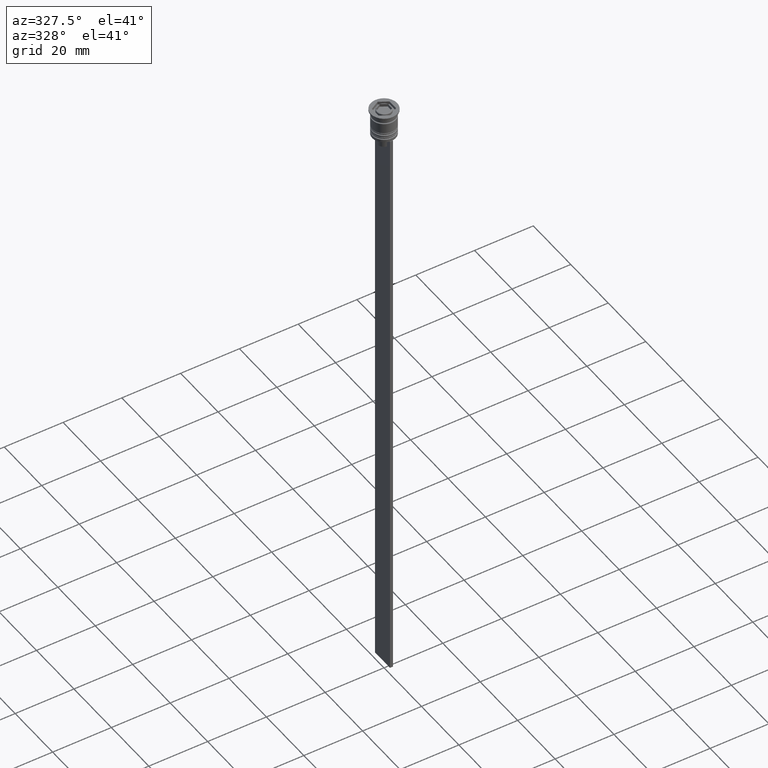
[diagram: clean part render]
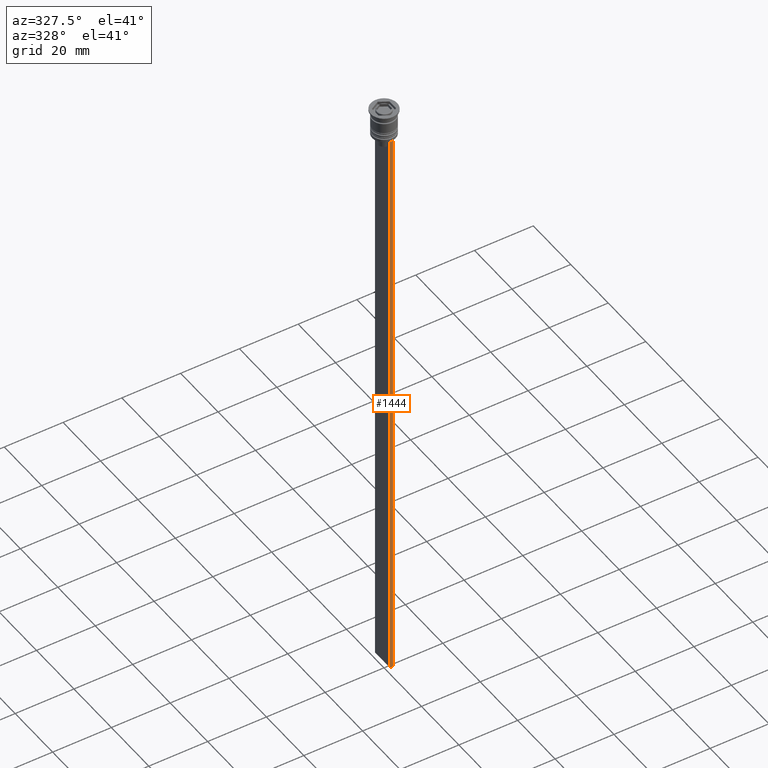
[diagram: same view with one face highlighted and labeled with its STEP entity id]
A machine part, auxiliary view. The second image highlights one B-rep face of the part: STEP entity #1444.
In plain terms, the highlighted planar face has unit normal (0, -1, -0).
Its self-contained STEP definition (entity closure, byte-faithful):
#19 = VECTOR ( 'NONE', #945, 1000.000000000000000 ) ;
#78 = CARTESIAN_POINT ( 'NONE',  ( 0.5000000000000000000, -4.000000000000000000, -1.437742251701450202 ) ) ;
#89 = VERTEX_POINT ( 'NONE', #1255 ) ;
#168 = LINE ( 'NONE', #531, #19 ) ;
#245 = DIRECTION ( 'NONE',  ( 0.000000000000000000, 0.000000000000000000, -1.000000000000000000 ) ) ;
#410 = ORIENTED_EDGE ( 'NONE', *, *, #1729, .F. ) ;
#469 = CARTESIAN_POINT ( 'NONE',  ( -0.5000000000000000000, -4.000000000000000000, -9.500000000000000000 ) ) ;
#506 = AXIS2_PLACEMENT_3D ( 'NONE', #1344, #2126, #1720 ) ;
#512 = VERTEX_POINT ( 'NONE', #1497 ) ;
#531 = CARTESIAN_POINT ( 'NONE',  ( 0.5000000000000000000, -4.000000000000000000, -9.500000000000000000 ) ) ;
#676 = VECTOR ( 'NONE', #1395, 1000.000000000000000 ) ;
#884 = FACE_OUTER_BOUND ( 'NONE', #2088, .T. ) ;
#945 = DIRECTION ( 'NONE',  ( 1.000000000000000000, 0.000000000000000000, 0.000000000000000000 ) ) ;
#957 = LINE ( 'NONE', #1967, #676 ) ;
#1007 = CARTESIAN_POINT ( 'NONE',  ( 0.5000000000000000000, -4.000000000000000000, -209.5000000000000284 ) ) ;
#1052 = LINE ( 'NONE', #78, #2473 ) ;
#1194 = ORIENTED_EDGE ( 'NONE', *, *, #1372, .F. ) ;
#1212 = LINE ( 'NONE', #1007, #1570 ) ;
#1255 = CARTESIAN_POINT ( 'NONE',  ( 0.5000000000000000000, -4.000000000000000000, -9.500000000000000000 ) ) ;
#1261 = EDGE_CURVE ( 'NONE', #1885, #512, #1212, .T. ) ;
#1344 = CARTESIAN_POINT ( 'NONE',  ( 0.5000000000000000000, -4.000000000000000000, -1.437742251701450202 ) ) ;
#1372 = EDGE_CURVE ( 'NONE', #1743, #89, #168, .T. ) ;
#1395 = DIRECTION ( 'NONE',  ( 0.000000000000000000, 0.000000000000000000, -1.000000000000000000 ) ) ;
#1444 = ADVANCED_FACE ( 'NONE', ( #884 ), #1669, .T. ) ;
#1445 = ORIENTED_EDGE ( 'NONE', *, *, #1553, .T. ) ;
#1497 = CARTESIAN_POINT ( 'NONE',  ( -0.5000000000000000000, -4.000000000000000000, -209.5000000000000284 ) ) ;
#1553 = EDGE_CURVE ( 'NONE', #1743, #512, #957, .T. ) ;
#1570 = VECTOR ( 'NONE', #1630, 1000.000000000000000 ) ;
#1630 = DIRECTION ( 'NONE',  ( -1.000000000000000000, 0.000000000000000000, 0.000000000000000000 ) ) ;
#1669 = PLANE ( 'NONE',  #506 ) ;
#1720 = DIRECTION ( 'NONE',  ( 0.000000000000000000, 0.000000000000000000, -1.000000000000000000 ) ) ;
#1729 = EDGE_CURVE ( 'NONE', #89, #1885, #1052, .T. ) ;
#1743 = VERTEX_POINT ( 'NONE', #469 ) ;
#1795 = CARTESIAN_POINT ( 'NONE',  ( 0.5000000000000000000, -4.000000000000000000, -209.5000000000000284 ) ) ;
#1885 = VERTEX_POINT ( 'NONE', #1795 ) ;
#1967 = CARTESIAN_POINT ( 'NONE',  ( -0.5000000000000000000, -4.000000000000000000, -1.437742251701450202 ) ) ;
#2088 = EDGE_LOOP ( 'NONE', ( #1194, #1445, #2137, #410 ) ) ;
#2126 = DIRECTION ( 'NONE',  ( 0.000000000000000000, -1.000000000000000000, -0.000000000000000000 ) ) ;
#2137 = ORIENTED_EDGE ( 'NONE', *, *, #1261, .F. ) ;
#2473 = VECTOR ( 'NONE', #245, 1000.000000000000000 ) ;